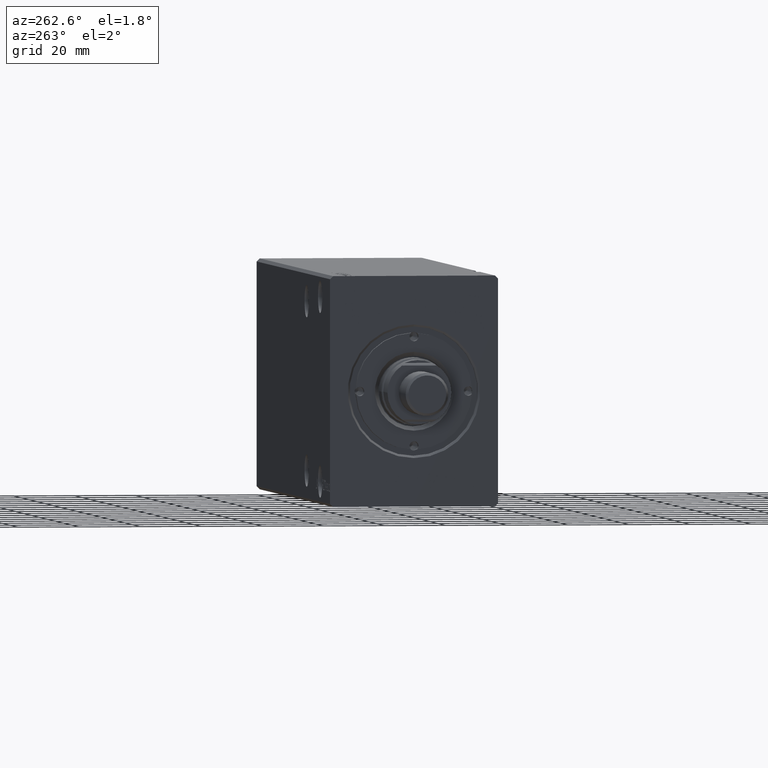
[diagram: clean part render]
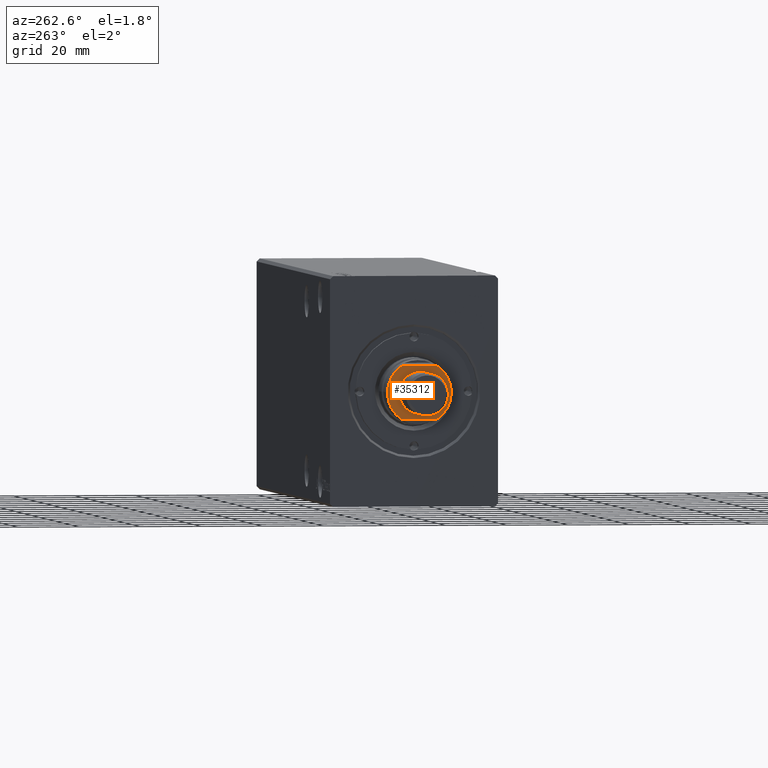
[diagram: same view with one face highlighted and labeled with its STEP entity id]
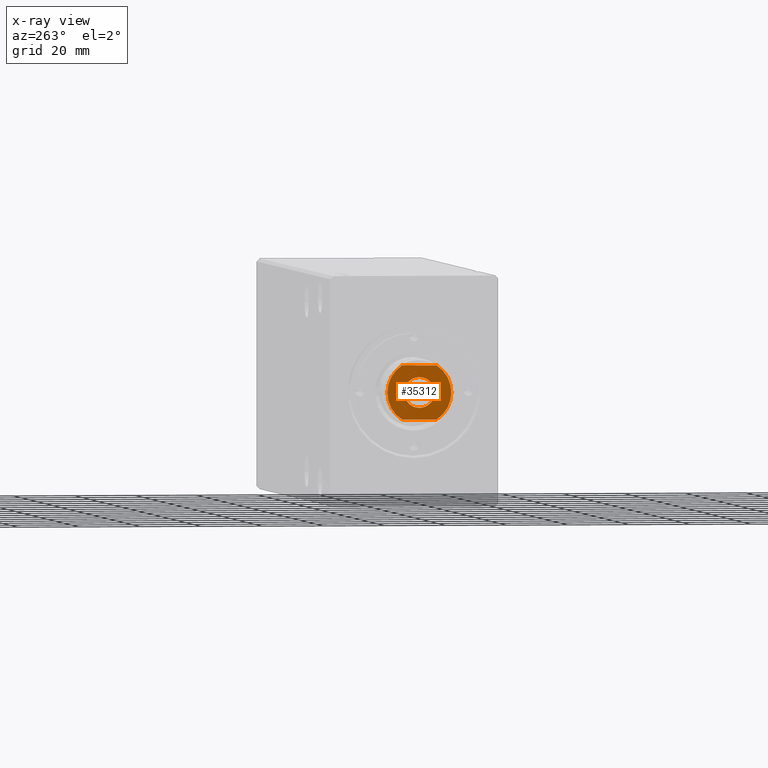
[diagram: x-ray of the same camera — body ghosted, the highlighted face saturated]
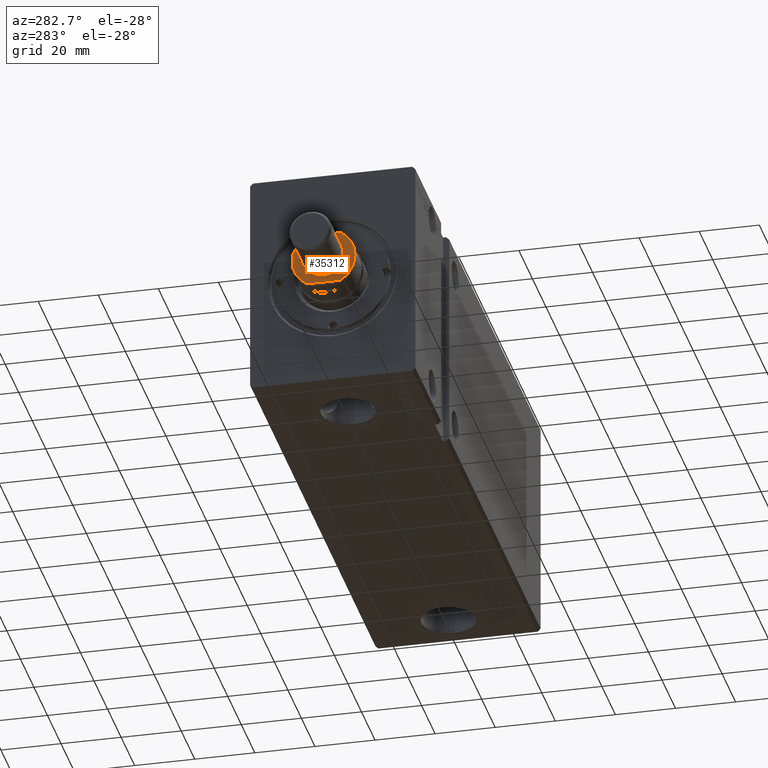
[diagram: same view with one face highlighted and labeled with its STEP entity id]
A machine part, auxiliary view. The second image highlights one B-rep face of the part: STEP entity #35312.
The next image is the same camera in x-ray: the body ghosted, the highlighted face saturated — about 0% of this face is hidden behind the body in this view.
A second angle (auxiliary view) of the same face is appended — the face is thin or edge-on in the first view.
In plain terms, the highlighted planar face has unit normal (1, 0, 0).
Its self-contained STEP definition (entity closure, byte-faithful):
#253 = ORIENTED_EDGE ( 'NONE', *, *, #28212, .T. ) ;
#661 = CARTESIAN_POINT ( 'NONE',  ( 0.000000000000000000, -10.46000000000003105, 168.5000000000000000 ) ) ;
#891 = ORIENTED_EDGE ( 'NONE', *, *, #3022, .F. ) ;
#1417 = AXIS2_PLACEMENT_3D ( 'NONE', #12357, #14989, #21850 ) ;
#1676 = AXIS2_PLACEMENT_3D ( 'NONE', #21285, #39486, #36438 ) ;
#1825 = AXIS2_PLACEMENT_3D ( 'NONE', #10624, #22975, #16704 ) ;
#2020 = CARTESIAN_POINT ( 'NONE',  ( 0.000000000000000000, -3.085170633587695342E-14, 168.5000000000000000 ) ) ;
#2582 = DIRECTION ( 'NONE',  ( 0.000000000000000000, -1.000000000000000000, 0.000000000000000000 ) ) ;
#3022 = EDGE_CURVE ( 'NONE', #24152, #28839, #31099, .T. ) ;
#3117 = VECTOR ( 'NONE', #25814, 1000.000000000000000 ) ;
#3249 = EDGE_CURVE ( 'NONE', #28839, #24152, #6541, .T. ) ;
#3495 = DIRECTION ( 'NONE',  ( 0.000000000000000000, -1.000000000000000000, -1.830961800348780351E-16 ) ) ;
#3979 = PLANE ( 'NONE',  #1825 ) ;
#4140 = CARTESIAN_POINT ( 'NONE',  ( 1.280980551908131527E-15, 10.45999999999996888, 168.5000000000000000 ) ) ;
#5978 = VERTEX_POINT ( 'NONE', #22320 ) ;
#6332 = CARTESIAN_POINT ( 'NONE',  ( 5.000000000000000000, -3.085170633587695342E-14, 168.5000000000000000 ) ) ;
#6398 = LINE ( 'NONE', #34490, #3117 ) ;
#6541 = CIRCLE ( 'NONE', #29143, 5.000000000000000000 ) ;
#7442 = ORIENTED_EDGE ( 'NONE', *, *, #3249, .F. ) ;
#8592 = VERTEX_POINT ( 'NONE', #20159 ) ;
#9040 = DIRECTION ( 'NONE',  ( -0.000000000000000000, -1.830961800348780351E-16, 1.000000000000000000 ) ) ;
#9237 = CARTESIAN_POINT ( 'NONE',  ( 0.000000000000000000, -3.085170633587695342E-14, 168.5000000000000000 ) ) ;
#9752 = LINE ( 'NONE', #31382, #24391 ) ;
#10083 = CARTESIAN_POINT ( 'NONE',  ( -8.790000000000025793, -5.669876541865786379, 168.5000000000000000 ) ) ;
#10624 = CARTESIAN_POINT ( 'NONE',  ( 0.000000000000000000, 10.45999999999996888, 168.5000000000000000 ) ) ;
#12237 = DIRECTION ( 'NONE',  ( 0.000000000000000000, -1.000000000000000000, 0.000000000000000000 ) ) ;
#12323 = EDGE_CURVE ( 'NONE', #8592, #19772, #30048, .T. ) ;
#12357 = CARTESIAN_POINT ( 'NONE',  ( 0.000000000000000000, -3.085170633587695342E-14, 168.5000000000000000 ) ) ;
#12860 = ORIENTED_EDGE ( 'NONE', *, *, #25587, .T. ) ;
#13877 = EDGE_LOOP ( 'NONE', ( #34835, #12860, #19741, #32386, #253, #32287 ) ) ;
#14523 = DIRECTION ( 'NONE',  ( 0.000000000000000000, 0.000000000000000000, 1.000000000000000000 ) ) ;
#14989 = DIRECTION ( 'NONE',  ( 0.000000000000000000, 0.000000000000000000, 1.000000000000000000 ) ) ;
#15714 = CARTESIAN_POINT ( 'NONE',  ( -5.000000000000000000, -3.023938293630327768E-14, 168.5000000000000000 ) ) ;
#16107 = FACE_OUTER_BOUND ( 'NONE', #13877, .T. ) ;
#16704 = DIRECTION ( 'NONE',  ( 0.000000000000000000, 1.000000000000000000, 1.830961800348780351E-16 ) ) ;
#16719 = CIRCLE ( 'NONE', #34161, 10.46000000000000085 ) ;
#17570 = DIRECTION ( 'NONE',  ( -0.000000000000000000, -1.830961800348780351E-16, 1.000000000000000000 ) ) ;
#19192 = CIRCLE ( 'NONE', #26308, 10.46000000000000085 ) ;
#19741 = ORIENTED_EDGE ( 'NONE', *, *, #31679, .T. ) ;
#19772 = VERTEX_POINT ( 'NONE', #4140 ) ;
#20159 = CARTESIAN_POINT ( 'NONE',  ( 8.790000000000025793, 5.669876541865724207, 168.5000000000000000 ) ) ;
#20201 = CARTESIAN_POINT ( 'NONE',  ( 0.000000000000000000, -3.085170633587695342E-14, 168.5000000000000000 ) ) ;
#21041 = VERTEX_POINT ( 'NONE', #661 ) ;
#21285 = CARTESIAN_POINT ( 'NONE',  ( 0.000000000000000000, -3.085170633587695342E-14, 168.5000000000000000 ) ) ;
#21850 = DIRECTION ( 'NONE',  ( 1.000000000000000000, 0.000000000000000000, 0.000000000000000000 ) ) ;
#22320 = CARTESIAN_POINT ( 'NONE',  ( 8.790000000000025793, -5.669876541865786379, 168.5000000000000000 ) ) ;
#22975 = DIRECTION ( 'NONE',  ( 0.000000000000000000, 1.830961800348780351E-16, -1.000000000000000000 ) ) ;
#24152 = VERTEX_POINT ( 'NONE', #6332 ) ;
#24169 = CARTESIAN_POINT ( 'NONE',  ( 0.000000000000000000, -3.085170633587695342E-14, 168.5000000000000000 ) ) ;
#24391 = VECTOR ( 'NONE', #3495, 1000.000000000000000 ) ;
#25104 = EDGE_LOOP ( 'NONE', ( #891, #7442 ) ) ;
#25587 = EDGE_CURVE ( 'NONE', #21041, #5978, #16719, .T. ) ;
#25814 = DIRECTION ( 'NONE',  ( 0.000000000000000000, 1.000000000000000000, 1.830961800348780351E-16 ) ) ;
#26308 = AXIS2_PLACEMENT_3D ( 'NONE', #9237, #9040, #2582 ) ;
#26928 = AXIS2_PLACEMENT_3D ( 'NONE', #24169, #33461, #12237 ) ;
#27724 = VERTEX_POINT ( 'NONE', #10083 ) ;
#28032 = EDGE_CURVE ( 'NONE', #27724, #21041, #19192, .T. ) ;
#28212 = EDGE_CURVE ( 'NONE', #19772, #32483, #32715, .T. ) ;
#28839 = VERTEX_POINT ( 'NONE', #15714 ) ;
#29143 = AXIS2_PLACEMENT_3D ( 'NONE', #2020, #14523, #29509 ) ;
#29380 = EDGE_CURVE ( 'NONE', #32483, #27724, #9752, .T. ) ;
#29509 = DIRECTION ( 'NONE',  ( 1.000000000000000000, 0.000000000000000000, 0.000000000000000000 ) ) ;
#30048 = CIRCLE ( 'NONE', #1676, 10.46000000000000085 ) ;
#31099 = CIRCLE ( 'NONE', #1417, 5.000000000000000000 ) ;
#31382 = CARTESIAN_POINT ( 'NONE',  ( -8.790000000000025793, 10.45999999999996888, 168.5000000000000000 ) ) ;
#31469 = FACE_BOUND ( 'NONE', #25104, .T. ) ;
#31679 = EDGE_CURVE ( 'NONE', #5978, #8592, #6398, .T. ) ;
#32287 = ORIENTED_EDGE ( 'NONE', *, *, #29380, .T. ) ;
#32386 = ORIENTED_EDGE ( 'NONE', *, *, #12323, .T. ) ;
#32452 = CARTESIAN_POINT ( 'NONE',  ( -8.790000000000025793, 5.669876541865724207, 168.5000000000000000 ) ) ;
#32483 = VERTEX_POINT ( 'NONE', #32452 ) ;
#32715 = CIRCLE ( 'NONE', #26928, 10.46000000000000085 ) ;
#33461 = DIRECTION ( 'NONE',  ( -0.000000000000000000, -1.830961800348780351E-16, 1.000000000000000000 ) ) ;
#34161 = AXIS2_PLACEMENT_3D ( 'NONE', #20201, #17570, #35763 ) ;
#34490 = CARTESIAN_POINT ( 'NONE',  ( 8.790000000000025793, 10.45999999999996888, 168.5000000000000000 ) ) ;
#34835 = ORIENTED_EDGE ( 'NONE', *, *, #28032, .T. ) ;
#35312 = ADVANCED_FACE ( 'NONE', ( #31469, #16107 ), #3979, .F. ) ;
#35763 = DIRECTION ( 'NONE',  ( 0.000000000000000000, -1.000000000000000000, 0.000000000000000000 ) ) ;
#36438 = DIRECTION ( 'NONE',  ( 0.000000000000000000, -1.000000000000000000, 0.000000000000000000 ) ) ;
#39486 = DIRECTION ( 'NONE',  ( -0.000000000000000000, -1.830961800348780351E-16, 1.000000000000000000 ) ) ;